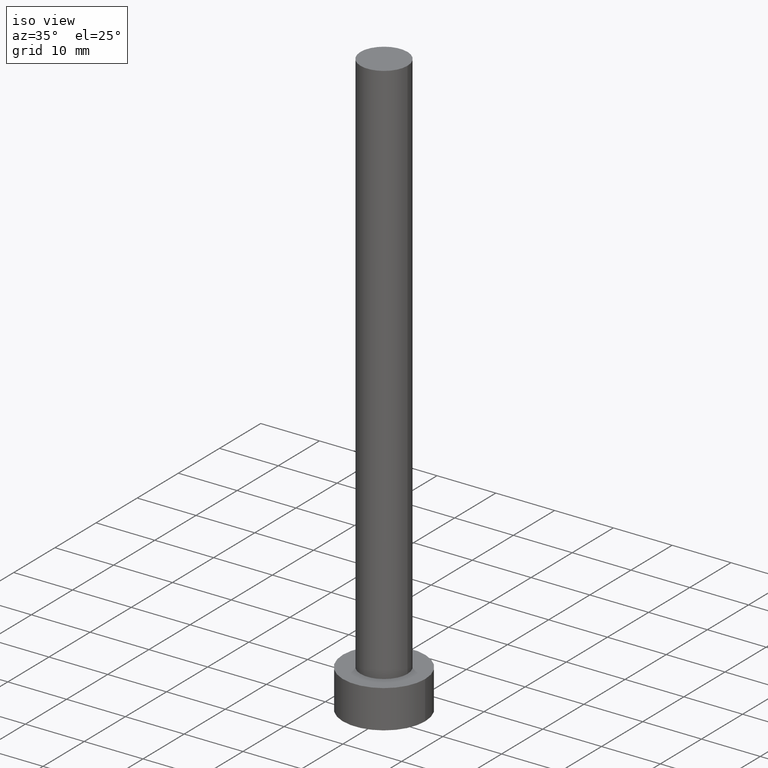
[diagram: clean part render]
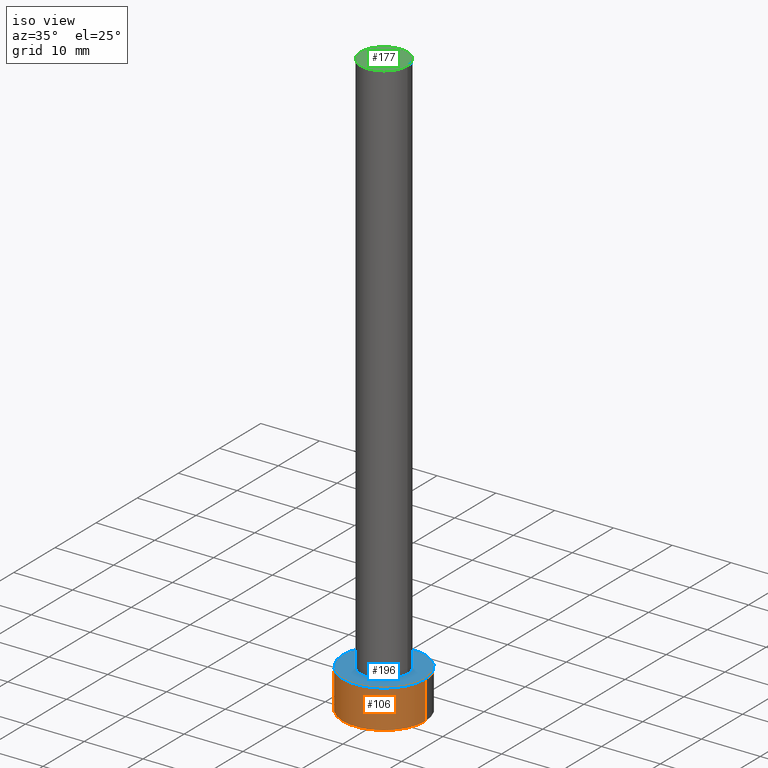
[diagram: same view with three faces highlighted in distinct colors, each labeled with its STEP entity id]
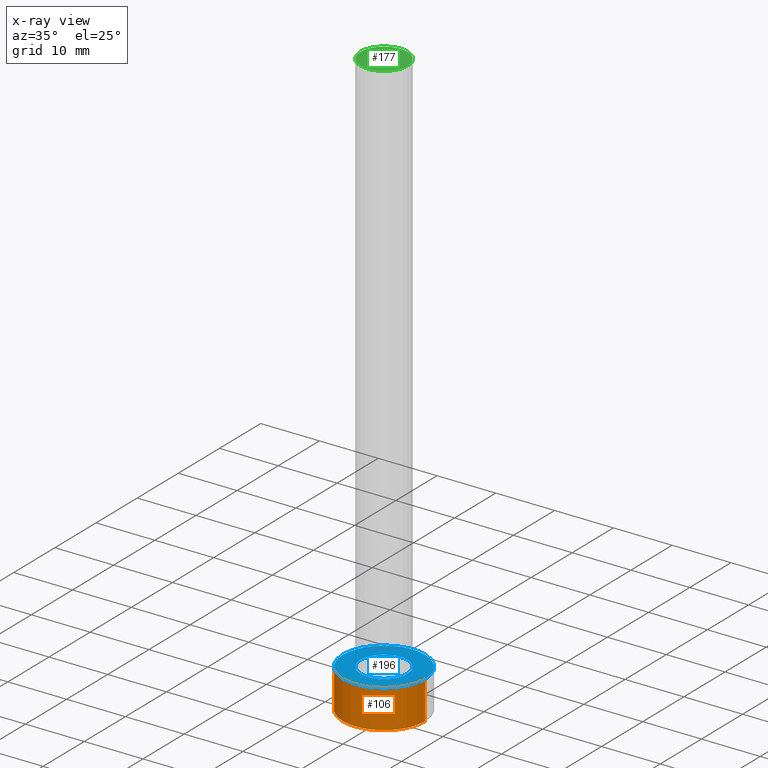
[diagram: x-ray of the same camera — body ghosted, the three highlighted faces saturated]
A machine part, iso view with three faces highlighted in distinct colors.
The next image is the same camera in x-ray (body ghosted, the three faces saturated) — at least one of them is partly hidden behind the body in this view.
Their STEP definitions:

[orange] entity #106 — the highlighted cylindrical surface (partial cylindrical patch) has radius 7 mm, axis along (-0, -0, -1).
#23 = CIRCLE ( 'NONE', #126, 7.000000000000000000 ) ;
#25 = CYLINDRICAL_SURFACE ( 'NONE', #138, 7.000000000000000000 ) ;
#38 = LINE ( 'NONE', #102, #92 ) ;
#41 = ORIENTED_EDGE ( 'NONE', *, *, #240, .F. ) ;
#49 = DIRECTION ( 'NONE',  ( -1.000000000000000000, 0.000000000000000000, 0.000000000000000000 ) ) ;
#76 = CARTESIAN_POINT ( 'NONE',  ( -7.000000000000000000, 0.000000000000000000, 6.500000000000000000 ) ) ;
#83 = CARTESIAN_POINT ( 'NONE',  ( 7.000000000000000000, 8.572527594031471218E-16, 6.500000000000000000 ) ) ;
#84 = CARTESIAN_POINT ( 'NONE',  ( 0.000000000000000000, 0.000000000000000000, 6.500000000000000000 ) ) ;
#90 = EDGE_CURVE ( 'NONE', #154, #242, #38, .T. ) ;
#92 = VECTOR ( 'NONE', #227, 1000.000000000000000 ) ;
#93 = ORIENTED_EDGE ( 'NONE', *, *, #235, .F. ) ;
#96 = CARTESIAN_POINT ( 'NONE',  ( 0.000000000000000000, 0.000000000000000000, 0.000000000000000000 ) ) ;
#100 = CARTESIAN_POINT ( 'NONE',  ( 0.000000000000000000, 0.000000000000000000, 6.500000000000000000 ) ) ;
#101 = ORIENTED_EDGE ( 'NONE', *, *, #90, .T. ) ;
#102 = CARTESIAN_POINT ( 'NONE',  ( -7.000000000000000000, 0.000000000000000000, 6.500000000000000000 ) ) ;
#106 = ADVANCED_FACE ( 'NONE', ( #205 ), #25, .T. ) ;
#110 = AXIS2_PLACEMENT_3D ( 'NONE', #84, #221, #121 ) ;
#117 = DIRECTION ( 'NONE',  ( 0.000000000000000000, 0.000000000000000000, 1.000000000000000000 ) ) ;
#121 = DIRECTION ( 'NONE',  ( 1.000000000000000000, 0.000000000000000000, 0.000000000000000000 ) ) ;
#126 = AXIS2_PLACEMENT_3D ( 'NONE', #96, #117, #201 ) ;
#138 = AXIS2_PLACEMENT_3D ( 'NONE', #100, #187, #49 ) ;
#140 = LINE ( 'NONE', #180, #194 ) ;
#144 = CARTESIAN_POINT ( 'NONE',  ( 7.000000000000000000, 8.572527594031471218E-16, 0.000000000000000000 ) ) ;
#154 = VERTEX_POINT ( 'NONE', #76 ) ;
#163 = ORIENTED_EDGE ( 'NONE', *, *, #233, .T. ) ;
#178 = VERTEX_POINT ( 'NONE', #83 ) ;
#180 = CARTESIAN_POINT ( 'NONE',  ( 7.000000000000000000, 8.572527594031471218E-16, 6.500000000000000000 ) ) ;
#186 = DIRECTION ( 'NONE',  ( -0.000000000000000000, -0.000000000000000000, -1.000000000000000000 ) ) ;
#187 = DIRECTION ( 'NONE',  ( -0.000000000000000000, -0.000000000000000000, -1.000000000000000000 ) ) ;
#194 = VECTOR ( 'NONE', #186, 1000.000000000000000 ) ;
#201 = DIRECTION ( 'NONE',  ( 1.000000000000000000, 0.000000000000000000, 0.000000000000000000 ) ) ;
#205 = FACE_OUTER_BOUND ( 'NONE', #208, .T. ) ;
#206 = CARTESIAN_POINT ( 'NONE',  ( -7.000000000000000000, 0.000000000000000000, 0.000000000000000000 ) ) ;
#208 = EDGE_LOOP ( 'NONE', ( #93, #41, #101, #163 ) ) ;
#218 = CIRCLE ( 'NONE', #110, 7.000000000000000000 ) ;
#221 = DIRECTION ( 'NONE',  ( 0.000000000000000000, 0.000000000000000000, 1.000000000000000000 ) ) ;
#227 = DIRECTION ( 'NONE',  ( -0.000000000000000000, -0.000000000000000000, -1.000000000000000000 ) ) ;
#230 = VERTEX_POINT ( 'NONE', #144 ) ;
#233 = EDGE_CURVE ( 'NONE', #242, #230, #23, .T. ) ;
#235 = EDGE_CURVE ( 'NONE', #178, #230, #140, .T. ) ;
#240 = EDGE_CURVE ( 'NONE', #154, #178, #218, .T. ) ;
#242 = VERTEX_POINT ( 'NONE', #206 ) ;

[blue] entity #196 — the highlighted planar face has unit normal (0, 0, 1).
#21 = FACE_OUTER_BOUND ( 'NONE', #105, .T. ) ;
#27 = CIRCLE ( 'NONE', #175, 4.000000000000000000 ) ;
#31 = CIRCLE ( 'NONE', #243, 7.000000000000000000 ) ;
#35 = EDGE_LOOP ( 'NONE', ( #141, #245 ) ) ;
#40 = DIRECTION ( 'NONE',  ( 0.000000000000000000, 0.000000000000000000, 1.000000000000000000 ) ) ;
#43 = VERTEX_POINT ( 'NONE', #161 ) ;
#45 = ORIENTED_EDGE ( 'NONE', *, *, #240, .T. ) ;
#55 = DIRECTION ( 'NONE',  ( 1.000000000000000000, 0.000000000000000000, 0.000000000000000000 ) ) ;
#56 = FACE_BOUND ( 'NONE', #35, .T. ) ;
#60 = DIRECTION ( 'NONE',  ( 0.000000000000000000, 0.000000000000000000, 1.000000000000000000 ) ) ;
#66 = DIRECTION ( 'NONE',  ( 1.000000000000000000, 0.000000000000000000, 0.000000000000000000 ) ) ;
#68 = AXIS2_PLACEMENT_3D ( 'NONE', #78, #255, #55 ) ;
#73 = EDGE_CURVE ( 'NONE', #136, #43, #27, .T. ) ;
#76 = CARTESIAN_POINT ( 'NONE',  ( -7.000000000000000000, 0.000000000000000000, 6.500000000000000000 ) ) ;
#78 = CARTESIAN_POINT ( 'NONE',  ( 0.000000000000000000, 0.000000000000000000, 6.500000000000000000 ) ) ;
#83 = CARTESIAN_POINT ( 'NONE',  ( 7.000000000000000000, 8.572527594031471218E-16, 6.500000000000000000 ) ) ;
#84 = CARTESIAN_POINT ( 'NONE',  ( 0.000000000000000000, 0.000000000000000000, 6.500000000000000000 ) ) ;
#85 = EDGE_CURVE ( 'NONE', #178, #154, #31, .T. ) ;
#105 = EDGE_LOOP ( 'NONE', ( #45, #181 ) ) ;
#110 = AXIS2_PLACEMENT_3D ( 'NONE', #84, #221, #121 ) ;
#121 = DIRECTION ( 'NONE',  ( 1.000000000000000000, 0.000000000000000000, 0.000000000000000000 ) ) ;
#123 = CARTESIAN_POINT ( 'NONE',  ( 0.000000000000000000, 0.000000000000000000, 6.500000000000000000 ) ) ;
#136 = VERTEX_POINT ( 'NONE', #211 ) ;
#141 = ORIENTED_EDGE ( 'NONE', *, *, #198, .F. ) ;
#149 = DIRECTION ( 'NONE',  ( 0.000000000000000000, 0.000000000000000000, 1.000000000000000000 ) ) ;
#150 = CIRCLE ( 'NONE', #68, 4.000000000000000000 ) ;
#152 = DIRECTION ( 'NONE',  ( 1.000000000000000000, 0.000000000000000000, 0.000000000000000000 ) ) ;
#154 = VERTEX_POINT ( 'NONE', #76 ) ;
#161 = CARTESIAN_POINT ( 'NONE',  ( -4.000000000000000000, 0.000000000000000000, 6.500000000000000000 ) ) ;
#166 = PLANE ( 'NONE',  #251 ) ;
#175 = AXIS2_PLACEMENT_3D ( 'NONE', #123, #40, #66 ) ;
#178 = VERTEX_POINT ( 'NONE', #83 ) ;
#181 = ORIENTED_EDGE ( 'NONE', *, *, #85, .T. ) ;
#196 = ADVANCED_FACE ( 'NONE', ( #56, #21 ), #166, .T. ) ;
#198 = EDGE_CURVE ( 'NONE', #43, #136, #150, .T. ) ;
#207 = CARTESIAN_POINT ( 'NONE',  ( 0.000000000000000000, 0.000000000000000000, 6.500000000000000000 ) ) ;
#211 = CARTESIAN_POINT ( 'NONE',  ( 4.000000000000000000, 4.898587196589412829E-16, 6.500000000000000000 ) ) ;
#218 = CIRCLE ( 'NONE', #110, 7.000000000000000000 ) ;
#220 = CARTESIAN_POINT ( 'NONE',  ( 0.000000000000000000, 0.000000000000000000, 6.500000000000000000 ) ) ;
#221 = DIRECTION ( 'NONE',  ( 0.000000000000000000, 0.000000000000000000, 1.000000000000000000 ) ) ;
#238 = DIRECTION ( 'NONE',  ( 1.000000000000000000, 0.000000000000000000, -0.000000000000000000 ) ) ;
#240 = EDGE_CURVE ( 'NONE', #154, #178, #218, .T. ) ;
#243 = AXIS2_PLACEMENT_3D ( 'NONE', #207, #149, #152 ) ;
#245 = ORIENTED_EDGE ( 'NONE', *, *, #73, .F. ) ;
#251 = AXIS2_PLACEMENT_3D ( 'NONE', #220, #60, #238 ) ;
#255 = DIRECTION ( 'NONE',  ( 0.000000000000000000, 0.000000000000000000, 1.000000000000000000 ) ) ;

[green] entity #177 — the highlighted planar face has unit normal (0, 0, 1).
#12 = ORIENTED_EDGE ( 'NONE', *, *, #61, .T. ) ;
#28 = CARTESIAN_POINT ( 'NONE',  ( -4.000000000000000000, 0.000000000000000000, 100.0000000000000000 ) ) ;
#51 = DIRECTION ( 'NONE',  ( 0.000000000000000000, 0.000000000000000000, 1.000000000000000000 ) ) ;
#52 = AXIS2_PLACEMENT_3D ( 'NONE', #253, #239, #59 ) ;
#59 = DIRECTION ( 'NONE',  ( 1.000000000000000000, 0.000000000000000000, -0.000000000000000000 ) ) ;
#61 = EDGE_CURVE ( 'NONE', #153, #89, #247, .T. ) ;
#75 = CARTESIAN_POINT ( 'NONE',  ( 0.000000000000000000, 0.000000000000000000, 100.0000000000000000 ) ) ;
#81 = PLANE ( 'NONE',  #52 ) ;
#89 = VERTEX_POINT ( 'NONE', #28 ) ;
#91 = DIRECTION ( 'NONE',  ( 1.000000000000000000, 0.000000000000000000, 0.000000000000000000 ) ) ;
#98 = EDGE_CURVE ( 'NONE', #89, #153, #124, .T. ) ;
#124 = CIRCLE ( 'NONE', #132, 4.000000000000000000 ) ;
#128 = CARTESIAN_POINT ( 'NONE',  ( 0.000000000000000000, 0.000000000000000000, 100.0000000000000000 ) ) ;
#132 = AXIS2_PLACEMENT_3D ( 'NONE', #128, #210, #91 ) ;
#134 = ORIENTED_EDGE ( 'NONE', *, *, #98, .T. ) ;
#153 = VERTEX_POINT ( 'NONE', #200 ) ;
#177 = ADVANCED_FACE ( 'NONE', ( #250 ), #81, .T. ) ;
#195 = DIRECTION ( 'NONE',  ( 1.000000000000000000, 0.000000000000000000, 0.000000000000000000 ) ) ;
#200 = CARTESIAN_POINT ( 'NONE',  ( 4.000000000000000000, 4.898587196589412829E-16, 100.0000000000000000 ) ) ;
#210 = DIRECTION ( 'NONE',  ( 0.000000000000000000, 0.000000000000000000, 1.000000000000000000 ) ) ;
#216 = AXIS2_PLACEMENT_3D ( 'NONE', #75, #51, #195 ) ;
#226 = EDGE_LOOP ( 'NONE', ( #134, #12 ) ) ;
#239 = DIRECTION ( 'NONE',  ( 0.000000000000000000, 0.000000000000000000, 1.000000000000000000 ) ) ;
#247 = CIRCLE ( 'NONE', #216, 4.000000000000000000 ) ;
#250 = FACE_OUTER_BOUND ( 'NONE', #226, .T. ) ;
#253 = CARTESIAN_POINT ( 'NONE',  ( 0.000000000000000000, 0.000000000000000000, 100.0000000000000000 ) ) ;